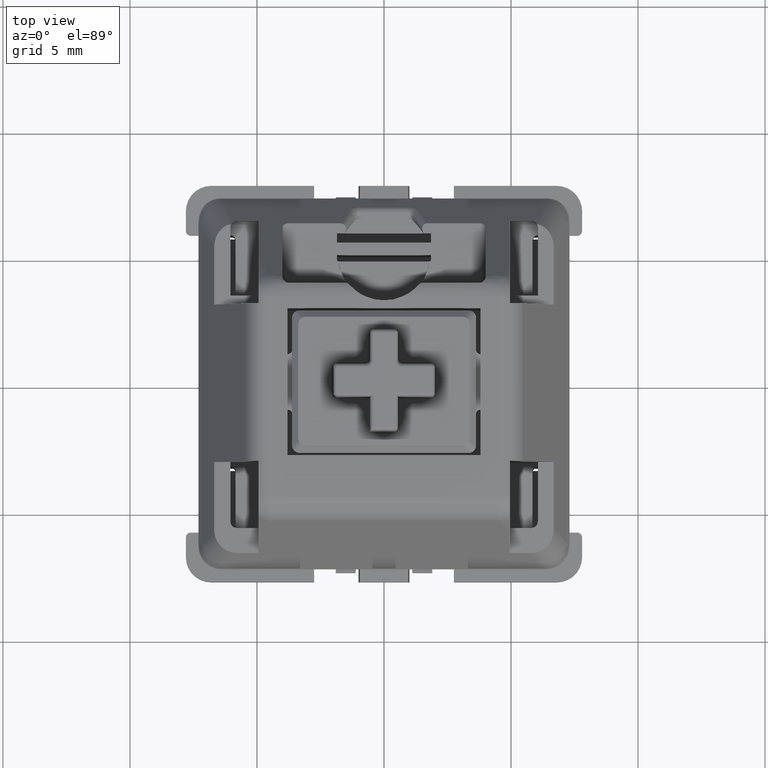
[diagram: clean part render]
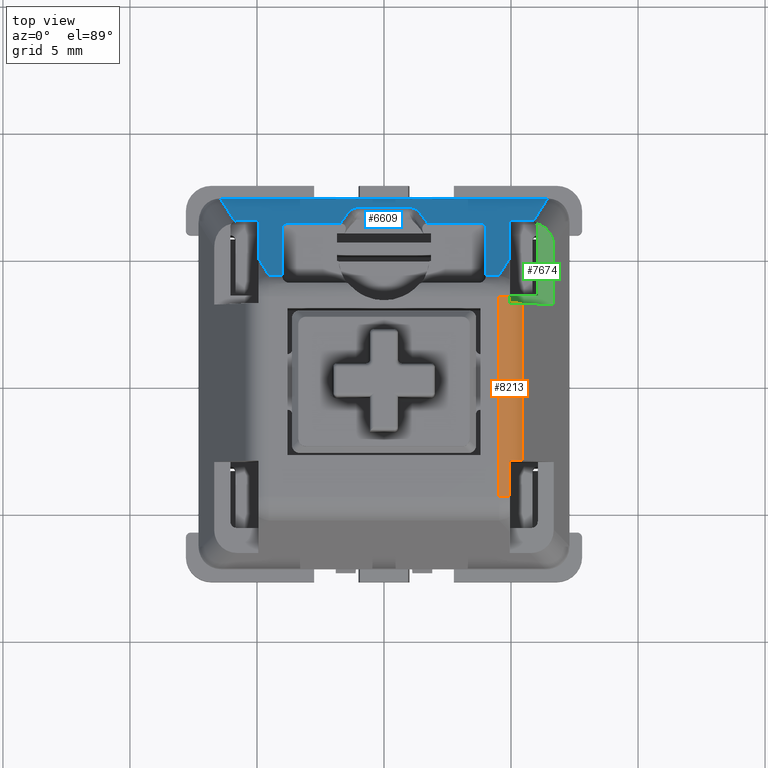
[diagram: same view with three faces highlighted in distinct colors, each labeled with its STEP entity id]
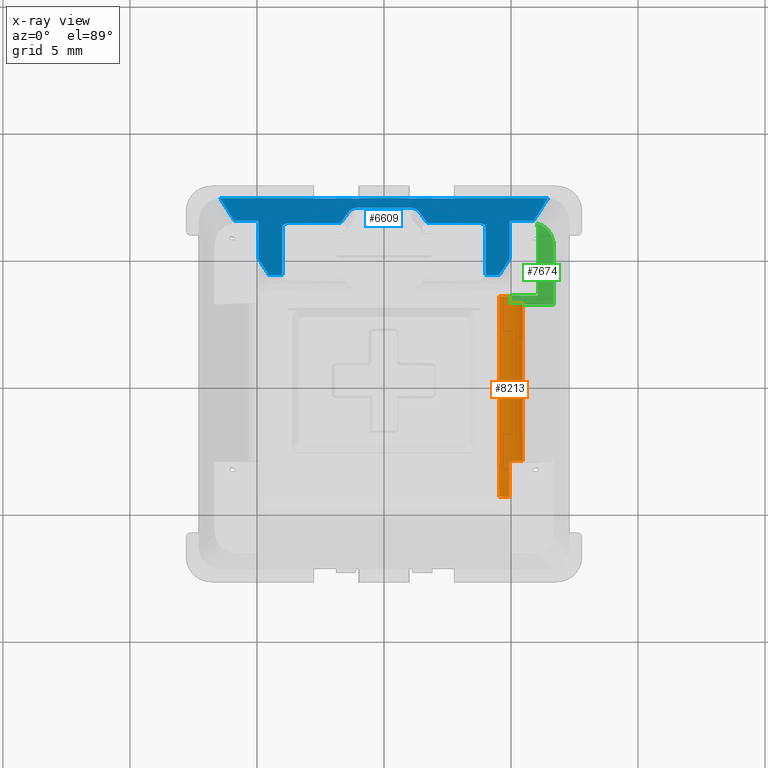
[diagram: x-ray of the same camera — body ghosted, the three highlighted faces saturated]
A machine part, top view with three faces highlighted in distinct colors.
The next image is the same camera in x-ray (body ghosted, the three faces saturated) — at least one of them is partly hidden behind the body in this view.
Their STEP definitions:

[orange] entity #8213 — the highlighted cylindrical surface (edge-blend (fillet) strip) has radius 1 mm, axis along (0, -1, 0).
#7061=CARTESIAN_POINT('',(0.178358554166627,0.132473080374488,0.200787401574803));
#7062=VERTEX_POINT('',#7061);
#7776=CARTESIAN_POINT('',(0.194881889763779,-0.122047244094488,0.19715221447783));
#7777=VERTEX_POINT('',#7776);
#7778=CARTESIAN_POINT('',(0.214763203712876,-0.122047244094488,0.176407472647807));
#7779=VERTEX_POINT('',#7778);
#7780=CARTESIAN_POINT('',(0.178358554166627,-0.122047244094488,0.161417322834646));
#7781=DIRECTION('',(0.0,1.0,0.0));
#7782=DIRECTION('',(0.556439661933666,0.0,0.830888020510073));
#7783=AXIS2_PLACEMENT_3D('',#7780,#7781,#7782);
#7784=CIRCLE('',#7783,0.039370078740157);
#7785=EDGE_CURVE('',#7777,#7779,#7784,.T.);
#7817=CARTESIAN_POINT('',(0.194881889763779,-0.178358554166628,0.19715221447783));
#7818=VERTEX_POINT('',#7817);
#7819=CARTESIAN_POINT('',(0.194881889763779,-0.178358554166628,0.19715221447783));
#7820=DIRECTION('',(0.0,1.0,0.0));
#7821=VECTOR('',#7820,0.05631131007214);
#7822=LINE('',#7819,#7821);
#7823=EDGE_CURVE('',#7818,#7777,#7822,.T.);
#7866=CARTESIAN_POINT('',(0.194881889763779,0.122047244094488,0.19715221447783));
#7867=VERTEX_POINT('',#7866);
#7868=CARTESIAN_POINT('',(0.194881889763779,0.132473080374488,0.19715221447783));
#7869=VERTEX_POINT('',#7868);
#7870=CARTESIAN_POINT('',(0.194881889763779,0.122047244094488,0.19715221447783));
#7871=DIRECTION('',(0.0,1.0,0.0));
#7872=VECTOR('',#7871,0.01042583628);
#7873=LINE('',#7870,#7872);
#7874=EDGE_CURVE('',#7867,#7869,#7873,.T.);
#7916=CARTESIAN_POINT('',(0.214763203712876,0.122047244094488,0.176407472647807));
#7917=VERTEX_POINT('',#7916);
#7918=CARTESIAN_POINT('',(0.178358554166627,0.122047244094488,0.161417322834646));
#7919=DIRECTION('',(0.0,-1.0,0.0));
#7920=DIRECTION('',(0.556439661933666,0.0,0.830888020510073));
#7921=AXIS2_PLACEMENT_3D('',#7918,#7919,#7920);
#7922=CIRCLE('',#7921,0.039370078740157);
#7923=EDGE_CURVE('',#7917,#7867,#7922,.T.);
#8174=CARTESIAN_POINT('',(0.178358554166627,0.148014662101544,0.161417322834646));
#8175=DIRECTION('',(0.0,-1.0,0.0));
#8176=DIRECTION('',(-0.556439661933669,0.0,-0.830888020510071));
#8177=AXIS2_PLACEMENT_3D('',#8174,#8175,#8176);
#8178=CYLINDRICAL_SURFACE('',#8177,0.039370078740157);
#8179=ORIENTED_EDGE('',*,*,#7823,.T.);
#8180=ORIENTED_EDGE('',*,*,#7785,.T.);
#8181=CARTESIAN_POINT('',(0.214763203712876,-0.122047244094488,0.176407472647807));
#8182=DIRECTION('',(0.0,1.0,0.0));
#8183=VECTOR('',#8182,0.244094488188976);
#8184=LINE('',#8181,#8183);
#8185=EDGE_CURVE('',#7779,#7917,#8184,.T.);
#8186=ORIENTED_EDGE('',*,*,#8185,.T.);
#8187=ORIENTED_EDGE('',*,*,#7923,.T.);
#8188=ORIENTED_EDGE('',*,*,#7874,.T.);
#8189=CARTESIAN_POINT('',(0.178358554166627,0.132473080374488,0.161417322834646));
#8190=DIRECTION('',(0.0,-1.0,0.0));
#8191=DIRECTION('',(0.924678098474716,0.0,0.380749805254295));
#8192=AXIS2_PLACEMENT_3D('',#8189,#8190,#8191);
#8193=CIRCLE('',#8192,0.039370078740157);
#8194=EDGE_CURVE('',#7869,#7062,#8193,.T.);
#8195=ORIENTED_EDGE('',*,*,#8194,.T.);
#8196=CARTESIAN_POINT('',(0.178358554166627,-0.178358554166628,0.200787401574803));
#8197=VERTEX_POINT('',#8196);
#8198=CARTESIAN_POINT('',(0.178358554166627,0.132473080374488,0.200787401574803));
#8199=DIRECTION('',(0.0,-1.0,0.0));
#8200=VECTOR('',#8199,0.310831634541116);
#8201=LINE('',#8198,#8200);
#8202=EDGE_CURVE('',#7062,#8197,#8201,.T.);
#8203=ORIENTED_EDGE('',*,*,#8202,.T.);
#8204=CARTESIAN_POINT('',(0.178358554166627,-0.178358554166628,0.161417322834646));
#8205=DIRECTION('',(0.0,1.0,0.0));
#8206=DIRECTION('',(0.0,0.0,1.0));
#8207=AXIS2_PLACEMENT_3D('',#8204,#8205,#8206);
#8208=CIRCLE('',#8207,0.039370078740157);
#8209=EDGE_CURVE('',#8197,#7818,#8208,.T.);
#8210=ORIENTED_EDGE('',*,*,#8209,.T.);
#8211=EDGE_LOOP('',(#8179,#8180,#8186,#8187,#8188,#8195,#8203,#8210));
#8212=FACE_OUTER_BOUND('',#8211,.T.);
#8213=ADVANCED_FACE('',(#8212),#8178,.T.);

[blue] entity #6609 — the highlighted planar face has unit normal (0, -0.8321, -0.5547).
#4147=CARTESIAN_POINT('',(-0.228346456692914,0.252084298286244,0.052975914775359));
#4148=VERTEX_POINT('',#4147);
#4149=CARTESIAN_POINT('',(-0.231650497391964,0.251513159771743,0.053832622547111));
#4150=VERTEX_POINT('',#4149);
#4151=CARTESIAN_POINT('',(-0.228346456692914,0.242241778601205,0.067739694302918));
#4152=DIRECTION('',(6.162976E-033,0.832050294337844,0.554700196225229));
#4153=DIRECTION('',(3.849006E-017,0.554700196225229,-0.832050294337844));
#4154=AXIS2_PLACEMENT_3D('',#4151,#4152,#4153);
#4155=ELLIPSE('',#4154,0.017743854702087,0.009842519685039);
#4156=EDGE_CURVE('',#4148,#4150,#4155,.T.);
#4264=CARTESIAN_POINT('',(0.228346456692915,0.252084298286244,0.052975914775359));
#4265=VERTEX_POINT('',#4264);
#4266=CARTESIAN_POINT('',(0.231650497391965,0.251513159771743,0.05383262254711));
#4267=VERTEX_POINT('',#4266);
#4268=CARTESIAN_POINT('',(0.228346456692915,0.242241778601205,0.067739694302918));
#4269=DIRECTION('',(-1.232595E-032,-0.832050294337844,-0.554700196225229));
#4270=DIRECTION('',(3.849006E-017,0.554700196225229,-0.832050294337844));
#4271=AXIS2_PLACEMENT_3D('',#4268,#4269,#4270);
#4272=ELLIPSE('',#4271,0.017743854702087,0.009842519685039);
#4273=EDGE_CURVE('',#4265,#4267,#4272,.T.);
#4329=CARTESIAN_POINT('',(0.194881889763779,0.252084298286244,0.052975914775359));
#4330=VERTEX_POINT('',#4329);
#4331=CARTESIAN_POINT('',(0.194881889763779,0.252084298286244,0.052975914775359));
#4332=DIRECTION('',(1.0,0.0,0.0));
#4333=VECTOR('',#4332,0.033464566929136);
#4334=LINE('',#4331,#4333);
#4335=EDGE_CURVE('',#4330,#4265,#4334,.T.);
#5161=CARTESIAN_POINT('',(0.03740157480315,0.28740157480315,9.023634E-017));
#5162=VERTEX_POINT('',#5161);
#5169=CARTESIAN_POINT('',(0.108267716535433,0.28740157480315,9.015097E-017));
#5170=VERTEX_POINT('',#5169);
#5171=CARTESIAN_POINT('',(0.03740157480315,0.28740157480315,3.496765E-016));
#5172=DIRECTION('',(1.0,0.0,0.0));
#5173=VECTOR('',#5172,0.070866141732283);
#5174=LINE('',#5171,#5173);
#5175=EDGE_CURVE('',#5162,#5170,#5174,.T.);
#5225=CARTESIAN_POINT('',(-0.108267716535433,0.28740157480315,9.015097E-017));
#5226=VERTEX_POINT('',#5225);
#5233=CARTESIAN_POINT('',(-0.03740157480315,0.28740157480315,8.468728E-017));
#5234=VERTEX_POINT('',#5233);
#5235=CARTESIAN_POINT('',(-0.108267716535433,0.28740157480315,3.496765E-016));
#5236=DIRECTION('',(1.0,0.0,0.0));
#5237=VECTOR('',#5236,0.070866141732283);
#5238=LINE('',#5235,#5237);
#5239=EDGE_CURVE('',#5226,#5234,#5238,.T.);
#5902=CARTESIAN_POINT('',(-0.067363763697461,0.248031496062992,0.059055118110237));
#5903=VERTEX_POINT('',#5902);
#5911=CARTESIAN_POINT('',(-0.147637795275591,0.248031496062992,0.059055118110237));
#5912=VERTEX_POINT('',#5911);
#5913=CARTESIAN_POINT('',(-0.147637795275591,0.248031496062992,0.059055118110237));
#5914=DIRECTION('',(1.0,0.0,0.0));
#5915=VECTOR('',#5914,0.08027403157813);
#5916=LINE('',#5913,#5915);
#5917=EDGE_CURVE('',#5912,#5903,#5916,.T.);
#5976=CARTESIAN_POINT('',(-0.054872360842275,0.265727650107838,0.032510887042968));
#5977=VERTEX_POINT('',#5976);
#5985=CARTESIAN_POINT('',(-0.054872360842275,0.265727650107838,0.032510887042968));
#5986=DIRECTION('',(-0.364600195504248,-0.516516943631017,0.774775415446526));
#5987=VECTOR('',#5986,0.034260548977243);
#5988=LINE('',#5985,#5987);
#5989=EDGE_CURVE('',#5977,#5903,#5988,.T.);
#6207=CARTESIAN_POINT('',(0.067363763697461,0.248031496062992,0.059055118110237));
#6208=VERTEX_POINT('',#6207);
#6216=CARTESIAN_POINT('',(0.054872360842275,0.265727650107838,0.032510887042968));
#6217=VERTEX_POINT('',#6216);
#6218=CARTESIAN_POINT('',(0.067363763697461,0.248031496062992,0.059055118110237));
#6219=DIRECTION('',(-0.364600195504248,0.516516943631018,-0.774775415446525));
#6220=VECTOR('',#6219,0.034260548977242);
#6221=LINE('',#6218,#6220);
#6222=EDGE_CURVE('',#6208,#6217,#6221,.T.);
#6275=CARTESIAN_POINT('',(0.147637795275591,0.248031496062992,0.059055118110237));
#6276=VERTEX_POINT('',#6275);
#6283=CARTESIAN_POINT('',(0.067363763697461,0.248031496062992,0.059055118110237));
#6284=DIRECTION('',(1.0,0.0,0.0));
#6285=VECTOR('',#6284,0.08027403157813);
#6286=LINE('',#6283,#6285);
#6287=EDGE_CURVE('',#6208,#6276,#6286,.T.);
#6332=CARTESIAN_POINT('',(-0.037060969066665,0.273263122072013,0.021207679096705));
#6333=VERTEX_POINT('',#6332);
#6341=CARTESIAN_POINT('',(-0.037060969066665,0.26013976249196,0.040892718466784));
#6342=DIRECTION('',(0.0,0.832050294337844,0.554700196225229));
#6343=DIRECTION('',(-4.041456E-016,0.554700196225229,-0.832050294337844));
#6344=AXIS2_PLACEMENT_3D('',#6341,#6342,#6343);
#6345=ELLIPSE('',#6344,0.023658472936115,0.019685039370079);
#6346=EDGE_CURVE('',#6333,#5977,#6345,.T.);
#6405=CARTESIAN_POINT('',(0.037060969066665,0.273263122072013,0.021207679096705));
#6406=VERTEX_POINT('',#6405);
#6407=CARTESIAN_POINT('',(0.037060969066665,0.26013976249196,0.040892718466784));
#6408=DIRECTION('',(-4.930381E-032,0.832050294337844,0.554700196225229));
#6409=DIRECTION('',(-5.196158E-016,0.554700196225229,-0.832050294337844));
#6410=AXIS2_PLACEMENT_3D('',#6407,#6408,#6409);
#6411=ELLIPSE('',#6410,0.023658472936115,0.019685039370079);
#6412=EDGE_CURVE('',#6217,#6406,#6411,.T.);
#6443=CARTESIAN_POINT('',(0.037060969066665,0.273263122072013,0.021207679096705));
#6444=DIRECTION('',(-1.0,0.0,0.0));
#6445=VECTOR('',#6444,0.07412193813333);
#6446=LINE('',#6443,#6445);
#6447=EDGE_CURVE('',#6406,#6333,#6446,.T.);
#6470=CARTESIAN_POINT('',(0.279198558520146,0.1591224355371,0.192418708899075));
#6471=DIRECTION('',(0.0,-0.832050294337844,-0.554700196225229));
#6472=DIRECTION('',(-1.0,0.0,0.0));
#6473=AXIS2_PLACEMENT_3D('',#6470,#6471,#6472);
#6474=PLANE('',#6473);
#6475=ORIENTED_EDGE('',*,*,#5989,.F.);
#6476=ORIENTED_EDGE('',*,*,#6346,.F.);
#6477=ORIENTED_EDGE('',*,*,#6447,.F.);
#6478=ORIENTED_EDGE('',*,*,#6412,.F.);
#6479=ORIENTED_EDGE('',*,*,#6222,.F.);
#6480=ORIENTED_EDGE('',*,*,#6287,.T.);
#6481=CARTESIAN_POINT('',(0.15748031496063,0.241469816272966,0.068897637795276));
#6482=VERTEX_POINT('',#6481);
#6483=CARTESIAN_POINT('',(0.147637795275591,0.241469816272966,0.068897637795276));
#6484=DIRECTION('',(-9.860761E-032,0.832050294337844,0.554700196225229));
#6485=DIRECTION('',(4.618807E-016,0.554700196225229,-0.832050294337844));
#6486=AXIS2_PLACEMENT_3D('',#6483,#6484,#6485);
#6487=ELLIPSE('',#6486,0.011829236468058,0.009842519685039);
#6488=EDGE_CURVE('',#6482,#6276,#6487,.T.);
#6489=ORIENTED_EDGE('',*,*,#6488,.F.);
#6490=CARTESIAN_POINT('',(0.15748031496063,0.165230965978341,0.183255913237214));
#6491=VERTEX_POINT('',#6490);
#6492=CARTESIAN_POINT('',(0.15748031496063,0.241469816272966,0.068897637795276));
#6493=DIRECTION('',(-2.019446E-016,-0.554700196225229,0.832050294337844));
#6494=VECTOR('',#6493,0.137441541959847);
#6495=LINE('',#6492,#6494);
#6496=EDGE_CURVE('',#6482,#6491,#6495,.T.);
#6497=ORIENTED_EDGE('',*,*,#6496,.T.);
#6498=CARTESIAN_POINT('',(0.178358554166627,0.16523096597834,0.183255913237214));
#6499=VERTEX_POINT('',#6498);
#6500=CARTESIAN_POINT('',(0.178358554166627,0.165230965978341,0.183255913237214));
#6501=DIRECTION('',(-1.0,0.0,0.0));
#6502=VECTOR('',#6501,0.020878239205997);
#6503=LINE('',#6500,#6502);
#6504=EDGE_CURVE('',#6499,#6491,#6503,.T.);
#6505=ORIENTED_EDGE('',*,*,#6504,.F.);
#6506=CARTESIAN_POINT('',(0.194881889763779,0.191983033135634,0.143127812501273));
#6507=VERTEX_POINT('',#6506);
#6508=CARTESIAN_POINT('',(0.19488188976378,0.191983033135634,0.143127812501273));
#6509=DIRECTION('',(-0.324114214160482,-0.524756346736019,0.787134520104029));
#6510=VECTOR('',#6509,0.05097997827695);
#6511=LINE('',#6508,#6510);
#6512=EDGE_CURVE('',#6507,#6499,#6511,.T.);
#6513=ORIENTED_EDGE('',*,*,#6512,.F.);
#6514=CARTESIAN_POINT('',(0.194881889763779,0.191983033135634,0.143127812501273));
#6515=DIRECTION('',(2.561680E-016,0.554700196225229,-0.832050294337844));
#6516=VECTOR('',#6515,0.10834909661039);
#6517=LINE('',#6514,#6516);
#6518=EDGE_CURVE('',#6507,#4330,#6517,.T.);
#6519=ORIENTED_EDGE('',*,*,#6518,.T.);
#6520=ORIENTED_EDGE('',*,*,#4335,.T.);
#6521=ORIENTED_EDGE('',*,*,#4273,.T.);
#6522=CARTESIAN_POINT('',(0.253816871381951,0.28740157480315,1.241429E-016));
#6523=VERTEX_POINT('',#6522);
#6524=CARTESIAN_POINT('',(0.253816871381951,0.28740157480315,2.286008E-016));
#6525=DIRECTION('',(-0.324114214160483,-0.524756346736019,0.787134520104029));
#6526=VECTOR('',#6525,0.06839062596314);
#6527=LINE('',#6524,#6526);
#6528=EDGE_CURVE('',#6523,#4267,#6527,.T.);
#6529=ORIENTED_EDGE('',*,*,#6528,.F.);
#6530=CARTESIAN_POINT('',(0.108267716535433,0.28740157480315,1.092739E-017));
#6531=DIRECTION('',(1.0,0.0,0.0));
#6532=VECTOR('',#6531,0.145549154846518);
#6533=LINE('',#6530,#6532);
#6534=EDGE_CURVE('',#5170,#6523,#6533,.T.);
#6535=ORIENTED_EDGE('',*,*,#6534,.F.);
#6536=ORIENTED_EDGE('',*,*,#5175,.F.);
#6537=CARTESIAN_POINT('',(-0.03740157480315,0.28740157480315,1.092739E-017));
#6538=DIRECTION('',(1.0,0.0,0.0));
#6539=VECTOR('',#6538,0.0748031496063);
#6540=LINE('',#6537,#6539);
#6541=EDGE_CURVE('',#5234,#5162,#6540,.T.);
#6542=ORIENTED_EDGE('',*,*,#6541,.F.);
#6543=ORIENTED_EDGE('',*,*,#5239,.F.);
#6544=CARTESIAN_POINT('',(-0.253816871381951,0.28740157480315,1.192907E-016));
#6545=VERTEX_POINT('',#6544);
#6546=CARTESIAN_POINT('',(-0.253816871381951,0.28740157480315,1.092739E-017));
#6547=DIRECTION('',(1.0,0.0,0.0));
#6548=VECTOR('',#6547,0.145549154846518);
#6549=LINE('',#6546,#6548);
#6550=EDGE_CURVE('',#6545,#5226,#6549,.T.);
#6551=ORIENTED_EDGE('',*,*,#6550,.F.);
#6552=CARTESIAN_POINT('',(-0.231650497391964,0.251513159771743,0.053832622547111));
#6553=DIRECTION('',(-0.324114214160484,0.524756346736019,-0.787134520104029));
#6554=VECTOR('',#6553,0.068390625963141);
#6555=LINE('',#6552,#6554);
#6556=EDGE_CURVE('',#4150,#6545,#6555,.T.);
#6557=ORIENTED_EDGE('',*,*,#6556,.F.);
#6558=ORIENTED_EDGE('',*,*,#4156,.F.);
#6559=CARTESIAN_POINT('',(-0.19488188976378,0.252084298286244,0.052975914775359));
#6560=VERTEX_POINT('',#6559);
#6561=CARTESIAN_POINT('',(-0.228346456692914,0.252084298286244,0.052975914775359));
#6562=DIRECTION('',(1.0,0.0,0.0));
#6563=VECTOR('',#6562,0.033464566929134);
#6564=LINE('',#6561,#6563);
#6565=EDGE_CURVE('',#4148,#6560,#6564,.T.);
#6566=ORIENTED_EDGE('',*,*,#6565,.T.);
#6567=CARTESIAN_POINT('',(-0.194881889763779,0.191983033135634,0.143127812501273));
#6568=VERTEX_POINT('',#6567);
#6569=CARTESIAN_POINT('',(-0.19488188976378,0.252084298286244,0.052975914775359));
#6570=DIRECTION('',(2.561680E-016,-0.554700196225229,0.832050294337844));
#6571=VECTOR('',#6570,0.10834909661039);
#6572=LINE('',#6569,#6571);
#6573=EDGE_CURVE('',#6560,#6568,#6572,.T.);
#6574=ORIENTED_EDGE('',*,*,#6573,.T.);
#6575=CARTESIAN_POINT('',(-0.178358554166627,0.16523096597834,0.183255913237214));
#6576=VERTEX_POINT('',#6575);
#6577=CARTESIAN_POINT('',(-0.178358554166627,0.16523096597834,0.183255913237214));
#6578=DIRECTION('',(-0.324114214160483,0.524756346736019,-0.787134520104029));
#6579=VECTOR('',#6578,0.05097997827695);
#6580=LINE('',#6577,#6579);
#6581=EDGE_CURVE('',#6576,#6568,#6580,.T.);
#6582=ORIENTED_EDGE('',*,*,#6581,.F.);
#6583=CARTESIAN_POINT('',(-0.15748031496063,0.165230965978341,0.183255913237214));
#6584=VERTEX_POINT('',#6583);
#6585=CARTESIAN_POINT('',(-0.15748031496063,0.165230965978341,0.183255913237214));
#6586=DIRECTION('',(-1.0,0.0,0.0));
#6587=VECTOR('',#6586,0.020878239205997);
#6588=LINE('',#6585,#6587);
#6589=EDGE_CURVE('',#6584,#6576,#6588,.T.);
#6590=ORIENTED_EDGE('',*,*,#6589,.F.);
#6591=CARTESIAN_POINT('',(-0.15748031496063,0.241469816653823,0.068897637380014));
#6592=VERTEX_POINT('',#6591);
#6593=CARTESIAN_POINT('',(-0.15748031496063,0.165230965978341,0.183255913237214));
#6594=DIRECTION('',(0.0,0.554700196225229,-0.832050294337844));
#6595=VECTOR('',#6594,0.137441542516628);
#6596=LINE('',#6593,#6595);
#6597=EDGE_CURVE('',#6584,#6592,#6596,.T.);
#6598=ORIENTED_EDGE('',*,*,#6597,.T.);
#6599=CARTESIAN_POINT('',(-0.147637795275591,0.241469816272966,0.068897637795276));
#6600=DIRECTION('',(9.860761E-032,0.832050294337844,0.554700196225229));
#6601=DIRECTION('',(-4.618807E-016,0.554700196225229,-0.832050294337844));
#6602=AXIS2_PLACEMENT_3D('',#6599,#6600,#6601);
#6603=ELLIPSE('',#6602,0.011829236468058,0.009842519685039);
#6604=EDGE_CURVE('',#5912,#6592,#6603,.T.);
#6605=ORIENTED_EDGE('',*,*,#6604,.F.);
#6606=ORIENTED_EDGE('',*,*,#5917,.T.);
#6607=EDGE_LOOP('',(#6475,#6476,#6477,#6478,#6479,#6480,#6489,#6497,#6505,#6513,#6519,#6520,#6521,#6529,#6535,#6536,#6542,#6543,#6551,#6557,#6558,#6566,#6574,#6582,#6590,#6598,#6605,#6606));
#6608=FACE_OUTER_BOUND('',#6607,.T.);
#6609=ADVANCED_FACE('',(#6608),#6474,.F.);

[green] entity #7674 — the highlighted planar face has unit normal (0, 0, 1).
#4292=CARTESIAN_POINT('',(0.238188976377953,0.242241778601205,0.059055118110237));
#4293=VERTEX_POINT('',#4292);
#4300=CARTESIAN_POINT('',(0.236810032880015,0.247266026959225,0.059055118130966));
#4301=VERTEX_POINT('',#4300);
#4302=CARTESIAN_POINT('',(0.228346456692915,0.242241778601205,0.059055118110237));
#4303=DIRECTION('',(0.0,0.0,1.0));
#4304=DIRECTION('',(0.707106781186547,0.707106781186547,0.0));
#4305=AXIS2_PLACEMENT_3D('',#4302,#4303,#4304);
#4306=CIRCLE('',#4305,0.009842519685039);
#4307=EDGE_CURVE('',#4293,#4301,#4306,.T.);
#5455=CARTESIAN_POINT('',(0.238188976377952,0.13594256600278,0.059055118110237));
#5456=VERTEX_POINT('',#5455);
#5463=CARTESIAN_POINT('',(0.238188976377952,0.242241778601205,0.059055118110237));
#5464=DIRECTION('',(0.0,-1.0,0.0));
#5465=VECTOR('',#5464,0.106299212598425);
#5466=LINE('',#5463,#5465);
#5467=EDGE_CURVE('',#4293,#5456,#5466,.T.);
#7446=CARTESIAN_POINT('',(0.194881889763779,0.13594256600278,0.059055118110237));
#7447=VERTEX_POINT('',#7446);
#7454=CARTESIAN_POINT('',(0.238188976377952,0.13594256600278,0.059055118110237));
#7455=DIRECTION('',(-1.0,0.0,0.0));
#7456=VECTOR('',#7455,0.043307086614173);
#7457=LINE('',#7454,#7456);
#7458=EDGE_CURVE('',#5456,#7447,#7457,.T.);
#7614=CARTESIAN_POINT('',(0.263084761463641,0.210707983399536,0.059055118110237));
#7615=VERTEX_POINT('',#7614);
#7616=CARTESIAN_POINT('',(0.220507697288443,0.200714550190761,0.059055118110237));
#7617=DIRECTION('',(0.0,0.0,-1.0));
#7618=DIRECTION('',(0.525492880721916,0.850797997359292,0.0));
#7619=AXIS2_PLACEMENT_3D('',#7616,#7617,#7618);
#7620=ELLIPSE('',#7619,0.050016963726803,0.039370078740157);
#7621=EDGE_CURVE('',#4301,#7615,#7620,.T.);
#7641=CARTESIAN_POINT('',(0.191471746178786,0.115786304948535,0.059055118110237));
#7642=DIRECTION('',(0.0,0.0,1.0));
#7643=DIRECTION('',(1.0,0.0,0.0));
#7644=AXIS2_PLACEMENT_3D('',#7641,#7642,#7643);
#7645=PLANE('',#7644);
#7646=ORIENTED_EDGE('',*,*,#5467,.T.);
#7647=ORIENTED_EDGE('',*,*,#7458,.T.);
#7648=CARTESIAN_POINT('',(0.194881889763779,0.122047244094488,0.059055118110237));
#7649=VERTEX_POINT('',#7648);
#7650=CARTESIAN_POINT('',(0.194881889763779,0.13594256600278,0.059055118110237));
#7651=DIRECTION('',(0.0,-1.0,0.0));
#7652=VECTOR('',#7651,0.013895321908292);
#7653=LINE('',#7650,#7652);
#7654=EDGE_CURVE('',#7447,#7649,#7653,.T.);
#7655=ORIENTED_EDGE('',*,*,#7654,.T.);
#7656=CARTESIAN_POINT('',(0.263084761463641,0.122047244094488,0.059055118110237));
#7657=VERTEX_POINT('',#7656);
#7658=CARTESIAN_POINT('',(0.194881889763779,0.122047244094488,0.059055118110237));
#7659=DIRECTION('',(1.0,0.0,0.0));
#7660=VECTOR('',#7659,0.068202871699862);
#7661=LINE('',#7658,#7660);
#7662=EDGE_CURVE('',#7649,#7657,#7661,.T.);
#7663=ORIENTED_EDGE('',*,*,#7662,.T.);
#7664=CARTESIAN_POINT('',(0.263084761463641,0.210707983399536,0.059055118110237));
#7665=DIRECTION('',(0.0,-1.0,0.0));
#7666=VECTOR('',#7665,0.088660739305048);
#7667=LINE('',#7664,#7666);
#7668=EDGE_CURVE('',#7615,#7657,#7667,.T.);
#7669=ORIENTED_EDGE('',*,*,#7668,.F.);
#7670=ORIENTED_EDGE('',*,*,#7621,.F.);
#7671=ORIENTED_EDGE('',*,*,#4307,.F.);
#7672=EDGE_LOOP('',(#7646,#7647,#7655,#7663,#7669,#7670,#7671));
#7673=FACE_OUTER_BOUND('',#7672,.T.);
#7674=ADVANCED_FACE('',(#7673),#7645,.T.);